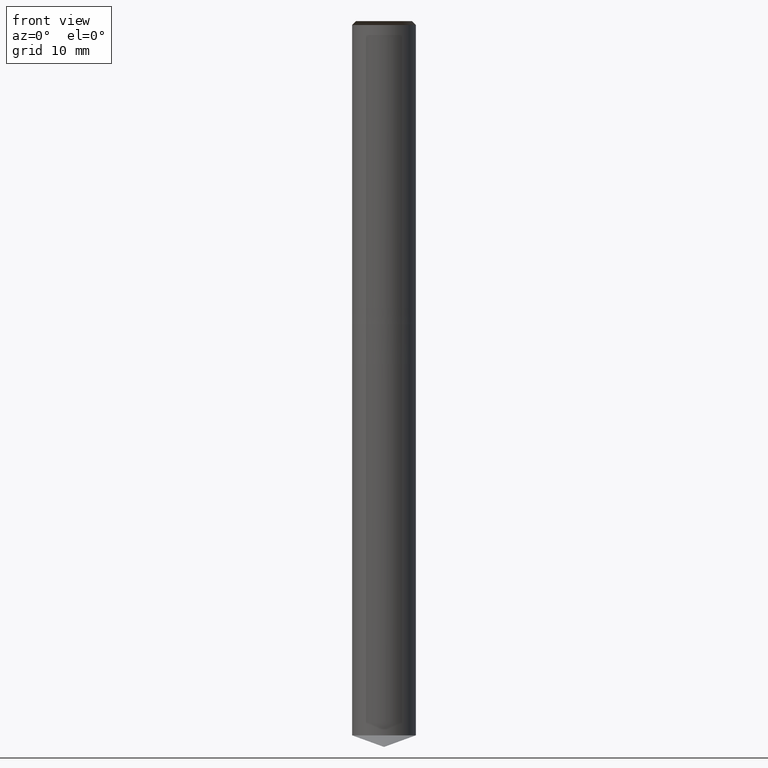
[diagram: clean part render]
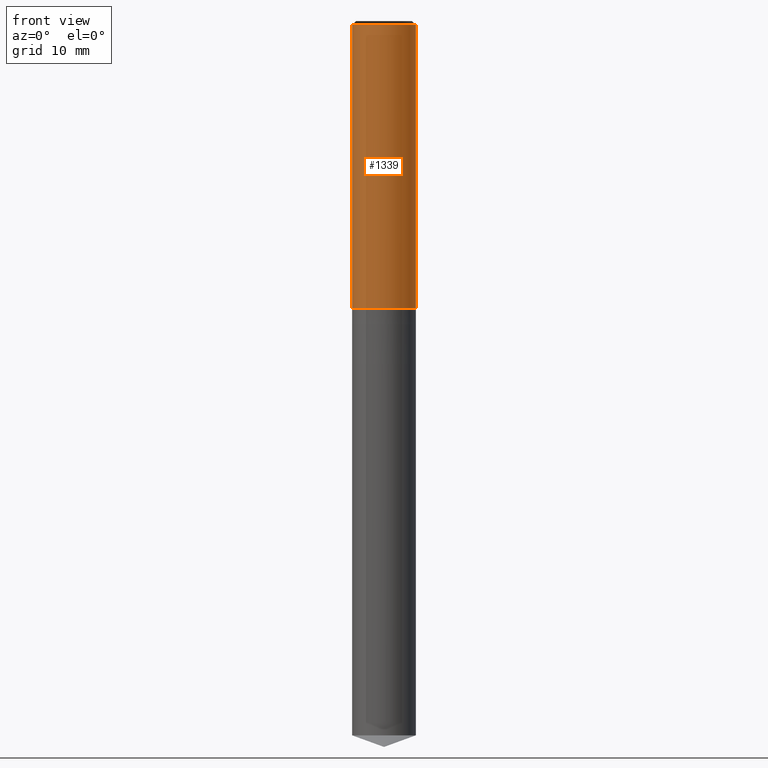
[diagram: same view with one face highlighted and labeled with its STEP entity id]
A machine part, front view. The second image highlights one B-rep face of the part: STEP entity #1339.
In plain terms, the highlighted face is a freeform B-spline surface patch.
Its self-contained STEP definition (entity closure, byte-faithful):
#1011=CARTESIAN_POINT('',(4.0,0.0,0.0));
#1015=CARTESIAN_POINT('',(-4.0,0.0,0.0));
#1016=CARTESIAN_POINT('',(4.0,0.0,35.5));
#1020=CARTESIAN_POINT('',(-4.0,0.0,35.5));
#1030=CARTESIAN_POINT('',(-4.0,-4.0,0.0));
#1031=CARTESIAN_POINT('',(0.0,-4.0,0.0));
#1032=CARTESIAN_POINT('',(4.0,-4.0,0.0));
#1033=CARTESIAN_POINT('',(-4.0,-4.0,35.5));
#1034=CARTESIAN_POINT('',(0.0,-4.0,35.5));
#1035=CARTESIAN_POINT('',(4.0,-4.0,35.5));
#1320=(
BOUNDED_SURFACE()
B_SPLINE_SURFACE(1,2,(
(#1015,#1030,#1031,#1032,#1011),
(#1020,#1033,#1034,#1035,#1016)
), .UNSPECIFIED.,.F.,.F.,.F.)
B_SPLINE_SURFACE_WITH_KNOTS((2,2),(3,2,3),(
0.0,1.0),(
0.0,0.5,1.0), .UNSPECIFIED.)
GEOMETRIC_REPRESENTATION_ITEM()
RATIONAL_B_SPLINE_SURFACE(((1.0,0.707106781187,1.0,0.707106781187,1.0),
(1.0,0.707106781187,1.0,0.707106781187,1.0)
))
REPRESENTATION_ITEM('')
SURFACE()
);
#1321=(
BOUNDED_CURVE()
B_SPLINE_CURVE(2,(#1011,#1032,#1031,#1030,#1015),.UNSPECIFIED.,.F.,.F.)
B_SPLINE_CURVE_WITH_KNOTS((3,2,3),
(0.0,0.5,1.0),.UNSPECIFIED.)
CURVE()
GEOMETRIC_REPRESENTATION_ITEM()
RATIONAL_B_SPLINE_CURVE((1.0,0.707106781187,1.0,0.707106781187,1.0))
REPRESENTATION_ITEM('')
);
#1322=(
BOUNDED_CURVE()
B_SPLINE_CURVE(1,(#1015,#1020),.UNSPECIFIED.,.F.,.F.)
B_SPLINE_CURVE_WITH_KNOTS((2,2),
(0.0,1.0),.UNSPECIFIED.)
CURVE()
GEOMETRIC_REPRESENTATION_ITEM()
RATIONAL_B_SPLINE_CURVE((1.0,1.0))
REPRESENTATION_ITEM('')
);
#1323=(
BOUNDED_CURVE()
B_SPLINE_CURVE(2,(#1020,#1033,#1034,#1035,#1016),.UNSPECIFIED.,.F.,.F.)
B_SPLINE_CURVE_WITH_KNOTS((3,2,3),
(0.0,0.5,1.0),.UNSPECIFIED.)
CURVE()
GEOMETRIC_REPRESENTATION_ITEM()
RATIONAL_B_SPLINE_CURVE((1.0,0.707106781187,1.0,0.707106781187,1.0))
REPRESENTATION_ITEM('')
);
#1324=(
BOUNDED_CURVE()
B_SPLINE_CURVE(1,(#1016,#1011),.UNSPECIFIED.,.F.,.F.)
B_SPLINE_CURVE_WITH_KNOTS((2,2),
(0.0,1.0),.UNSPECIFIED.)
CURVE()
GEOMETRIC_REPRESENTATION_ITEM()
RATIONAL_B_SPLINE_CURVE((1.0,1.0))
REPRESENTATION_ITEM('')
);
#1325=VERTEX_POINT('',#1011);
#1326=VERTEX_POINT('',#1015);
#1327=VERTEX_POINT('',#1016);
#1328=VERTEX_POINT('',#1020);
#1329=EDGE_CURVE('',#1325,#1326,#1321,.T.);
#1330=EDGE_CURVE('',#1326,#1328,#1322,.T.);
#1331=EDGE_CURVE('',#1328,#1327,#1323,.T.);
#1332=EDGE_CURVE('',#1327,#1325,#1324,.T.);
#1333=ORIENTED_EDGE('',*,*,#1329,.T.);
#1334=ORIENTED_EDGE('',*,*,#1330,.T.);
#1335=ORIENTED_EDGE('',*,*,#1331,.T.);
#1336=ORIENTED_EDGE('',*,*,#1332,.T.);
#1337=EDGE_LOOP('',(#1333,#1334,#1335,#1336));
#1338=FACE_OUTER_BOUND('',#1337,.T.);
#1339=ADVANCED_FACE('',(#1338),#1320,.T.);